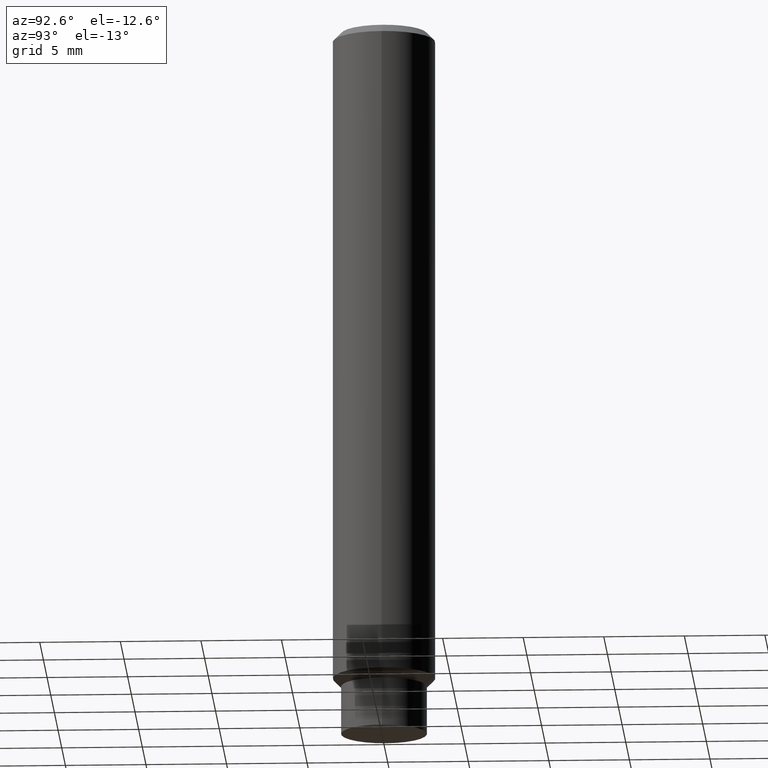
[diagram: clean part render]
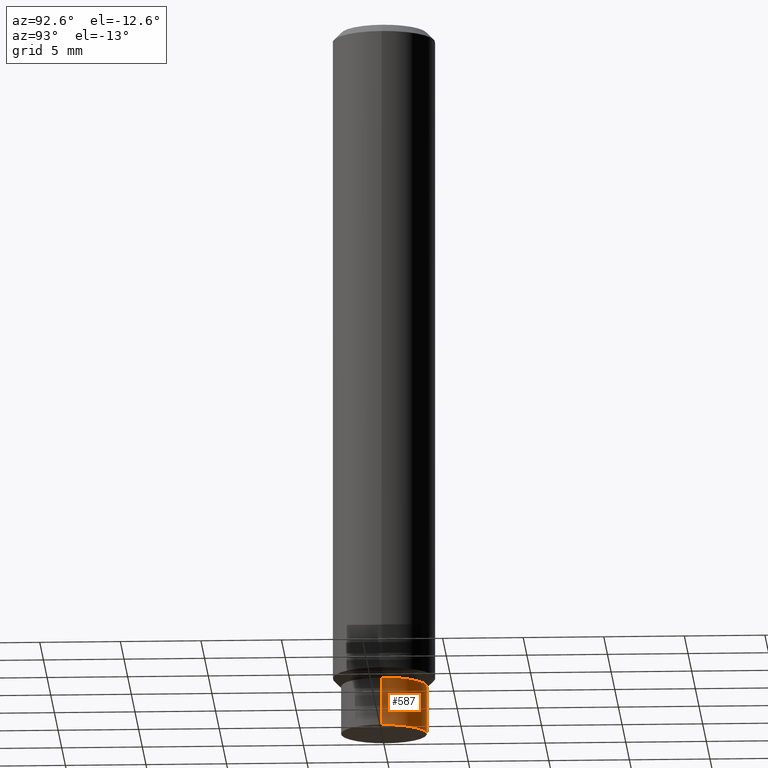
[diagram: same view with one face highlighted and labeled with its STEP entity id]
A machine part, auxiliary view. The second image highlights one B-rep face of the part: STEP entity #587.
In plain terms, the highlighted cylindrical surface (partial cylindrical patch) has radius 2.667 mm, axis along (-0, 0, 1).
Its self-contained STEP definition (entity closure, byte-faithful):
#14 = EDGE_CURVE ( 'NONE', #387, #188, #79, .T. ) ;
#15 = CARTESIAN_POINT ( 'NONE',  ( 0.000000000000000000, 0.000000000000000000, 0.000000000000000000 ) ) ;
#18 = DIRECTION ( 'NONE',  ( -2.445468806185136597E-29, 3.491481338843145583E-15, 1.000000000000000000 ) ) ;
#38 = CARTESIAN_POINT ( 'NONE',  ( 0.1049999999999999684, -6.431308626149071583E-15, -1.631999999999999895 ) ) ;
#39 = EDGE_CURVE ( 'NONE', #397, #387, #450, .T. ) ;
#46 = FACE_OUTER_BOUND ( 'NONE', #197, .T. ) ;
#49 = DIRECTION ( 'NONE',  ( -2.445468806185136877E-29, 3.491481338843145188E-15, 1.000000000000000000 ) ) ;
#66 = DIRECTION ( 'NONE',  ( -2.445468806185136877E-29, 3.491481338843145188E-15, 1.000000000000000000 ) ) ;
#74 = CIRCLE ( 'NONE', #569, 0.1049999999999999684 ) ;
#79 = LINE ( 'NONE', #209, #547 ) ;
#121 = DIRECTION ( 'NONE',  ( -2.445468806185136597E-29, 3.491481338843145583E-15, 1.000000000000000000 ) ) ;
#124 = CARTESIAN_POINT ( 'NONE',  ( 3.991005091694142827E-29, -5.698097544992013263E-15, -1.631999999999999895 ) ) ;
#154 = AXIS2_PLACEMENT_3D ( 'NONE', #169, #121, #361 ) ;
#169 = CARTESIAN_POINT ( 'NONE',  ( 4.279570410823988484E-29, -6.110092342975504671E-15, -1.750000000000000000 ) ) ;
#182 = ORIENTED_EDGE ( 'NONE', *, *, #412, .F. ) ;
#188 = VERTEX_POINT ( 'NONE', #347 ) ;
#189 = LINE ( 'NONE', #344, #329 ) ;
#193 = AXIS2_PLACEMENT_3D ( 'NONE', #15, #18, #500 ) ;
#197 = EDGE_LOOP ( 'NONE', ( #640, #474, #182, #592 ) ) ;
#209 = CARTESIAN_POINT ( 'NONE',  ( -0.1049999999999999684, 7.460698725481049703E-16, -5.164881844767649922E-30 ) ) ;
#276 = DIRECTION ( 'NONE',  ( 1.000000000000000000, -6.982962677686269866E-15, 0.000000000000000000 ) ) ;
#291 = CYLINDRICAL_SURFACE ( 'NONE', #193, 0.1049999999999999684 ) ;
#316 = DIRECTION ( 'NONE',  ( -2.445468806185136597E-29, 3.491481338843145583E-15, 1.000000000000000000 ) ) ;
#329 = VECTOR ( 'NONE', #49, 39.37007874015748143 ) ;
#344 = CARTESIAN_POINT ( 'NONE',  ( 0.1049999999999999684, -7.332110811570578271E-16, 5.119985614585731321E-30 ) ) ;
#347 = CARTESIAN_POINT ( 'NONE',  ( -0.1049999999999999684, -4.846058585479466463E-15, -1.631999999999999895 ) ) ;
#361 = DIRECTION ( 'NONE',  ( 1.000000000000000000, -6.982962677686268288E-15, 0.000000000000000000 ) ) ;
#387 = VERTEX_POINT ( 'NONE', #473 ) ;
#397 = VERTEX_POINT ( 'NONE', #528 ) ;
#412 = EDGE_CURVE ( 'NONE', #434, #188, #74, .T. ) ;
#434 = VERTEX_POINT ( 'NONE', #38 ) ;
#450 = CIRCLE ( 'NONE', #154, 0.1049999999999999961 ) ;
#473 = CARTESIAN_POINT ( 'NONE',  ( -0.1049999999999999961, -5.158025071435654292E-15, -1.750000000000000000 ) ) ;
#474 = ORIENTED_EDGE ( 'NONE', *, *, #14, .T. ) ;
#500 = DIRECTION ( 'NONE',  ( 1.000000000000000000, -6.982962677686267499E-15, 4.876176775795935793E-29 ) ) ;
#528 = CARTESIAN_POINT ( 'NONE',  ( 0.1049999999999999961, -6.843303424132562202E-15, -1.750000000000000000 ) ) ;
#530 = EDGE_CURVE ( 'NONE', #397, #434, #189, .T. ) ;
#547 = VECTOR ( 'NONE', #66, 39.37007874015748143 ) ;
#569 = AXIS2_PLACEMENT_3D ( 'NONE', #124, #316, #276 ) ;
#587 = ADVANCED_FACE ( 'NONE', ( #46 ), #291, .T. ) ;
#592 = ORIENTED_EDGE ( 'NONE', *, *, #530, .F. ) ;
#640 = ORIENTED_EDGE ( 'NONE', *, *, #39, .T. ) ;